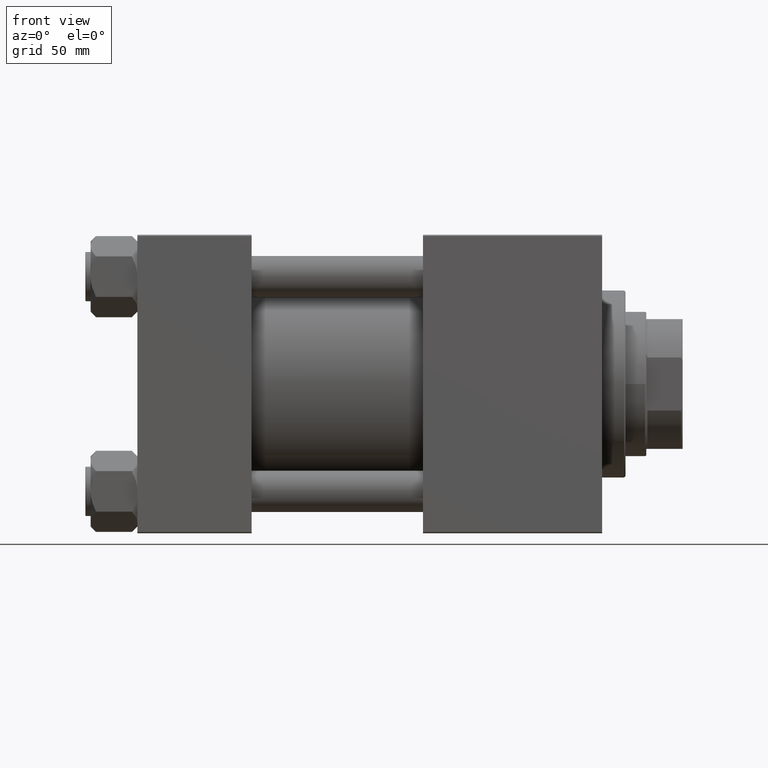
[diagram: clean part render]
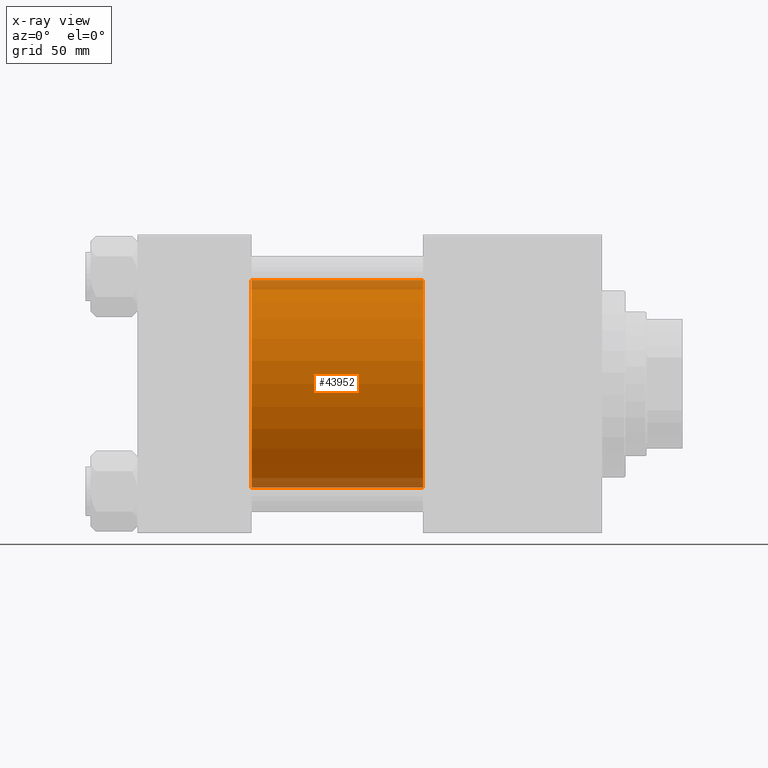
[diagram: x-ray — body ghosted, one internal face saturated and labeled with its STEP entity id]
A machine part, front view, then the same camera in x-ray: the body is ghosted and one INTERNAL B-rep face — a face not visible from any outside direction — is saturated and labeled: STEP entity #43952.
In plain terms, the highlighted cylindrical surface (partial cylindrical patch) has radius 40 mm, axis along (-1, -0, -0).
Its self-contained STEP definition (entity closure, byte-faithful):
#2290 = EDGE_CURVE ( 'NONE', #15921, #40423, #16314, .T. ) ;
#2482 = AXIS2_PLACEMENT_3D ( 'NONE', #36894, #5381, #25117 ) ;
#3795 = AXIS2_PLACEMENT_3D ( 'NONE', #28167, #43771, #24338 ) ;
#4080 = EDGE_CURVE ( 'NONE', #26164, #40423, #11870, .T. ) ;
#4597 = CARTESIAN_POINT ( 'NONE',  ( 110.0000000000000000, -2.602085213965210642E-15, 40.00000000000000000 ) ) ;
#5381 = DIRECTION ( 'NONE',  ( -1.000000000000000000, -0.000000000000000000, -0.000000000000000000 ) ) ;
#5632 = FACE_OUTER_BOUND ( 'NONE', #17521, .T. ) ;
#8413 = ORIENTED_EDGE ( 'NONE', *, *, #31523, .T. ) ;
#11870 = CIRCLE ( 'NONE', #3795, 40.00000000000000000 ) ;
#12187 = DIRECTION ( 'NONE',  ( 1.000000000000000000, 0.000000000000000000, 0.000000000000000000 ) ) ;
#13668 = CARTESIAN_POINT ( 'NONE',  ( 110.0000000000000000, -2.602085213965210642E-15, 40.00000000000000000 ) ) ;
#14801 = ORIENTED_EDGE ( 'NONE', *, *, #47031, .F. ) ;
#15921 = VERTEX_POINT ( 'NONE', #38952 ) ;
#16314 = LINE ( 'NONE', #39875, #18482 ) ;
#17521 = EDGE_LOOP ( 'NONE', ( #8413, #49119, #25883, #14801 ) ) ;
#18482 = VECTOR ( 'NONE', #47797, 1000.000000000000000 ) ;
#20259 = LINE ( 'NONE', #4597, #34626 ) ;
#21040 = CYLINDRICAL_SURFACE ( 'NONE', #2482, 40.00000000000000000 ) ;
#24338 = DIRECTION ( 'NONE',  ( 0.000000000000000000, 0.000000000000000000, -1.000000000000000000 ) ) ;
#24349 = DIRECTION ( 'NONE',  ( -1.000000000000000000, -0.000000000000000000, -0.000000000000000000 ) ) ;
#25117 = DIRECTION ( 'NONE',  ( 0.000000000000000000, 0.000000000000000000, 1.000000000000000000 ) ) ;
#25147 = AXIS2_PLACEMENT_3D ( 'NONE', #35494, #12187, #40120 ) ;
#25883 = ORIENTED_EDGE ( 'NONE', *, *, #4080, .F. ) ;
#26164 = VERTEX_POINT ( 'NONE', #49271 ) ;
#28167 = CARTESIAN_POINT ( 'NONE',  ( 44.00000000000000000, -2.602085213965210642E-15, 0.000000000000000000 ) ) ;
#31523 = EDGE_CURVE ( 'NONE', #45522, #15921, #35751, .T. ) ;
#34626 = VECTOR ( 'NONE', #24349, 1000.000000000000000 ) ;
#35494 = CARTESIAN_POINT ( 'NONE',  ( 110.0000000000000000, -2.602085213965210642E-15, 0.000000000000000000 ) ) ;
#35751 = CIRCLE ( 'NONE', #25147, 40.00000000000000000 ) ;
#36894 = CARTESIAN_POINT ( 'NONE',  ( 110.0000000000000000, -2.602085213965210642E-15, 0.000000000000000000 ) ) ;
#38952 = CARTESIAN_POINT ( 'NONE',  ( 110.0000000000000000, 2.296501982624201990E-15, -40.00000000000000000 ) ) ;
#39875 = CARTESIAN_POINT ( 'NONE',  ( 110.0000000000000000, 2.296501982624201990E-15, -40.00000000000000000 ) ) ;
#40120 = DIRECTION ( 'NONE',  ( 0.000000000000000000, 0.000000000000000000, -1.000000000000000000 ) ) ;
#40423 = VERTEX_POINT ( 'NONE', #43804 ) ;
#43771 = DIRECTION ( 'NONE',  ( 1.000000000000000000, 0.000000000000000000, 0.000000000000000000 ) ) ;
#43804 = CARTESIAN_POINT ( 'NONE',  ( 44.00000000000000000, 2.296501982624201990E-15, -40.00000000000000000 ) ) ;
#43952 = ADVANCED_FACE ( 'NONE', ( #5632 ), #21040, .F. ) ;
#45522 = VERTEX_POINT ( 'NONE', #13668 ) ;
#47031 = EDGE_CURVE ( 'NONE', #45522, #26164, #20259, .T. ) ;
#47797 = DIRECTION ( 'NONE',  ( -1.000000000000000000, -0.000000000000000000, -0.000000000000000000 ) ) ;
#49119 = ORIENTED_EDGE ( 'NONE', *, *, #2290, .T. ) ;
#49271 = CARTESIAN_POINT ( 'NONE',  ( 44.00000000000000000, -2.602085213965210642E-15, 40.00000000000000000 ) ) ;